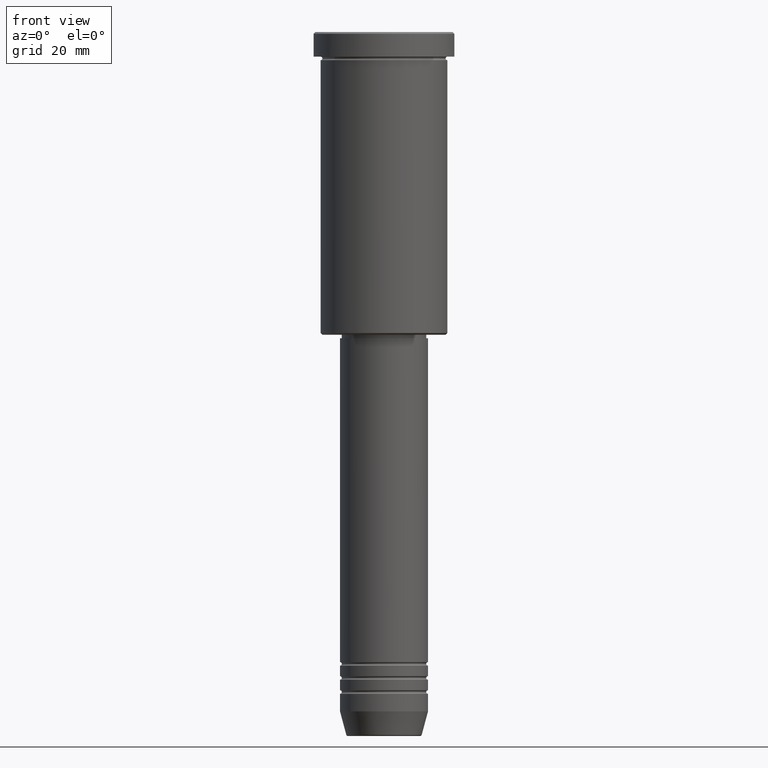
[diagram: clean part render]
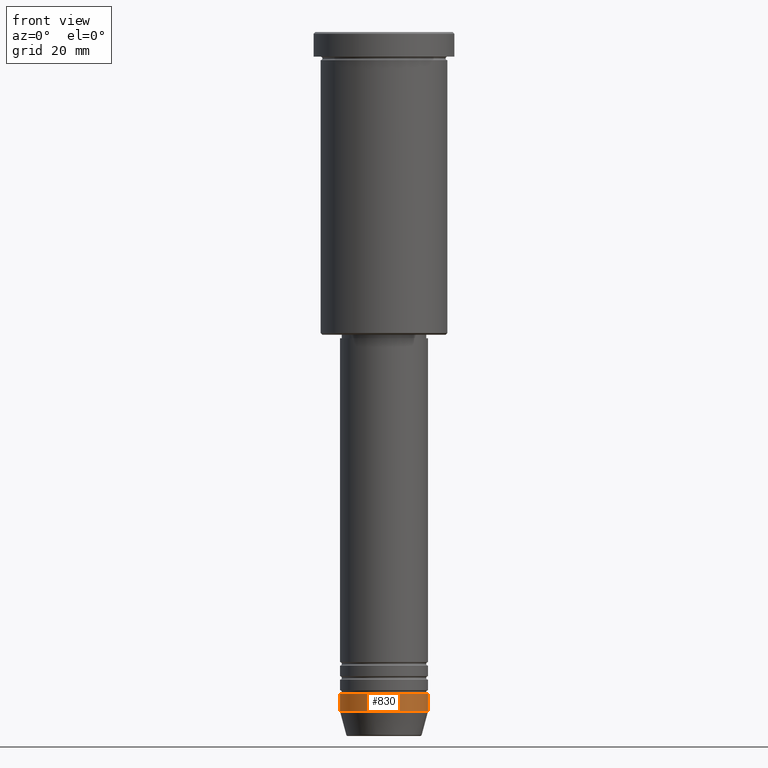
[diagram: same view with one face highlighted and labeled with its STEP entity id]
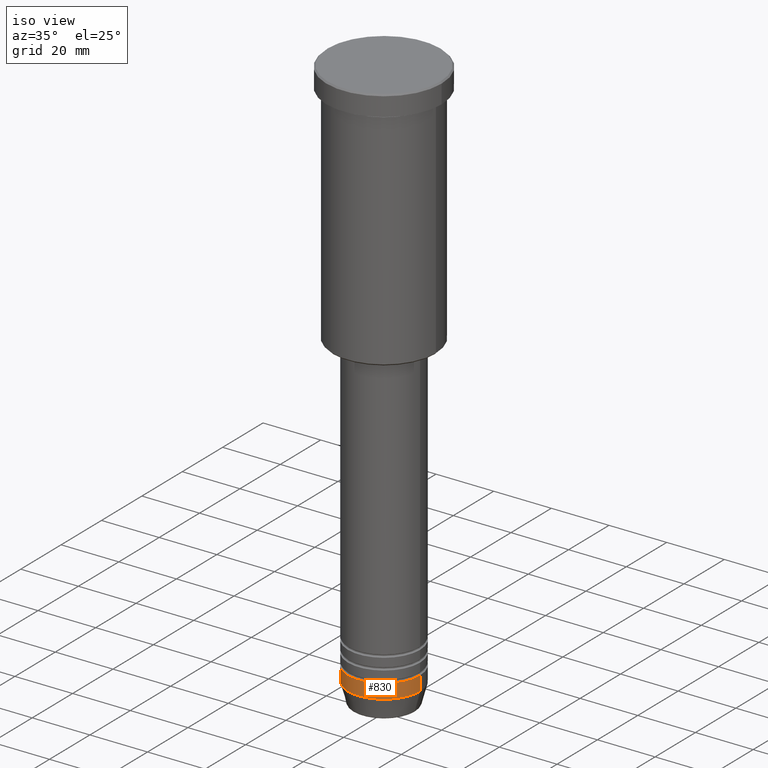
[diagram: same view with one face highlighted and labeled with its STEP entity id]
A machine part, front view. The second image highlights one B-rep face of the part: STEP entity #830.
A second angle (iso view) of the same face is appended — the face is thin or edge-on in the first view.
In plain terms, the highlighted cylindrical surface (partial cylindrical patch) has radius 12.5 mm, axis along (-0, -0, 1).
Its self-contained STEP definition (entity closure, byte-faithful):
#42 = CIRCLE ( 'NONE', #376, 12.50000000000000000 ) ;
#48 = CYLINDRICAL_SURFACE ( 'NONE', #369, 12.50000000000000000 ) ;
#67 = DIRECTION ( 'NONE',  ( 1.000000000000000000, 0.000000000000000000, 0.000000000000000000 ) ) ;
#87 = EDGE_CURVE ( 'NONE', #693, #385, #630, .T. ) ;
#113 = CIRCLE ( 'NONE', #342, 12.50000000000000000 ) ;
#114 = DIRECTION ( 'NONE',  ( -0.000000000000000000, -0.000000000000000000, 1.000000000000000000 ) ) ;
#165 = CARTESIAN_POINT ( 'NONE',  ( -12.50000000000000000, 1.530808498934191521E-15, 0.000000000000000000 ) ) ;
#212 = CARTESIAN_POINT ( 'NONE',  ( 12.50000000000000000, 0.000000000000000000, -193.0000000000000284 ) ) ;
#216 = FACE_OUTER_BOUND ( 'NONE', #1043, .T. ) ;
#278 = EDGE_CURVE ( 'NONE', #693, #1168, #42, .T. ) ;
#328 = CARTESIAN_POINT ( 'NONE',  ( -12.50000000000000000, 1.530808498934191521E-15, -188.0000000000000284 ) ) ;
#342 = AXIS2_PLACEMENT_3D ( 'NONE', #451, #914, #987 ) ;
#351 = VECTOR ( 'NONE', #114, 1000.000000000000000 ) ;
#369 = AXIS2_PLACEMENT_3D ( 'NONE', #500, #1146, #508 ) ;
#371 = LINE ( 'NONE', #1027, #351 ) ;
#376 = AXIS2_PLACEMENT_3D ( 'NONE', #596, #1076, #67 ) ;
#385 = VERTEX_POINT ( 'NONE', #328 ) ;
#445 = ORIENTED_EDGE ( 'NONE', *, *, #87, .F. ) ;
#451 = CARTESIAN_POINT ( 'NONE',  ( 0.000000000000000000, 0.000000000000000000, -188.0000000000000284 ) ) ;
#472 = EDGE_CURVE ( 'NONE', #385, #542, #113, .T. ) ;
#500 = CARTESIAN_POINT ( 'NONE',  ( 0.000000000000000000, 0.000000000000000000, 0.000000000000000000 ) ) ;
#508 = DIRECTION ( 'NONE',  ( 1.000000000000000000, 0.000000000000000000, 0.000000000000000000 ) ) ;
#542 = VERTEX_POINT ( 'NONE', #810 ) ;
#567 = ORIENTED_EDGE ( 'NONE', *, *, #1125, .T. ) ;
#596 = CARTESIAN_POINT ( 'NONE',  ( 0.000000000000000000, 0.000000000000000000, -193.0000000000000284 ) ) ;
#630 = LINE ( 'NONE', #165, #1153 ) ;
#693 = VERTEX_POINT ( 'NONE', #1033 ) ;
#810 = CARTESIAN_POINT ( 'NONE',  ( 12.50000000000000000, 0.000000000000000000, -188.0000000000000284 ) ) ;
#830 = ADVANCED_FACE ( 'NONE', ( #216 ), #48, .T. ) ;
#914 = DIRECTION ( 'NONE',  ( -0.000000000000000000, -0.000000000000000000, 1.000000000000000000 ) ) ;
#949 = ORIENTED_EDGE ( 'NONE', *, *, #472, .F. ) ;
#987 = DIRECTION ( 'NONE',  ( 1.000000000000000000, 0.000000000000000000, 0.000000000000000000 ) ) ;
#1000 = DIRECTION ( 'NONE',  ( -0.000000000000000000, -0.000000000000000000, 1.000000000000000000 ) ) ;
#1027 = CARTESIAN_POINT ( 'NONE',  ( 12.50000000000000000, 0.000000000000000000, 0.000000000000000000 ) ) ;
#1033 = CARTESIAN_POINT ( 'NONE',  ( -12.50000000000000000, 1.530808498934191521E-15, -193.0000000000000284 ) ) ;
#1043 = EDGE_LOOP ( 'NONE', ( #445, #1050, #567, #949 ) ) ;
#1050 = ORIENTED_EDGE ( 'NONE', *, *, #278, .T. ) ;
#1076 = DIRECTION ( 'NONE',  ( -0.000000000000000000, -0.000000000000000000, 1.000000000000000000 ) ) ;
#1125 = EDGE_CURVE ( 'NONE', #1168, #542, #371, .T. ) ;
#1146 = DIRECTION ( 'NONE',  ( -0.000000000000000000, -0.000000000000000000, 1.000000000000000000 ) ) ;
#1153 = VECTOR ( 'NONE', #1000, 1000.000000000000000 ) ;
#1168 = VERTEX_POINT ( 'NONE', #212 ) ;